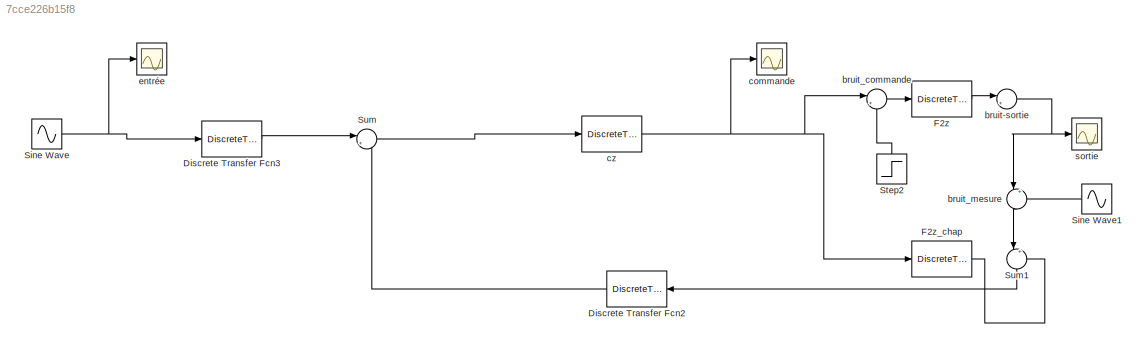
MODEL slx_7cce226b15f8
KIND model
CONFIG AbsTol = auto
CONFIG EnableMultiTasking = off
CONFIG FixedStep = auto
CONFIG MaxStep = auto
CONFIG MinStep = auto
CONFIG RelTol = 1e-3
CONFIG SampleTimeConstraint = Unconstrained
CONFIG SolverName = VariableStepAuto
CONFIG StartTime = 0.0
CONFIG StopTime = 0.1
BLOCK [DiscreteTransferFcn] Discrete Transfer Fcn2
  Denominator = Fz_I.Denominator{1}
  InputPortMap = u0
  NameLocation = top
  Numerator = Fz_I.Numerator{1}
  SampleTime = Te
BLOCK [DiscreteTransferFcn] Discrete Transfer Fcn3
  Denominator = Gz_I.Denominator{1}
  InputPortMap = u0
  Numerator = Gz_I.Numerator{1}
  SampleTime = Te
BLOCK [DiscreteTransferFcn] F2z
  Denominator = Az_I
  InputPortMap = u0
  Numerator = Bz_I
  SampleTime = Te
BLOCK [DiscreteTransferFcn] F2z_chap
  Denominator = Az_I
  InputPortMap = u0
  Numerator = Bz_I
  SampleTime = Te
BLOCK [Sin] Sine Wave
  Amplitude = 25
  Frequency = 314
  SampleTime = Te
BLOCK [Sin] Sine Wave1
  Frequency = 9500
  NameLocation = top
  SampleTime = Te
BLOCK [Step] Step2
  NameLocation = right
  SampleTime = Te
  Time = 0.05
BLOCK [Sum] Sum
  Inputs = |+-
BLOCK [Sum] Sum1
  Inputs = |+-
  NameLocation = left
BLOCK [Sum] bruit-sortie
  Inputs = |++
BLOCK [Sum] bruit_commande
  Inputs = |++
BLOCK [Sum] bruit_mesure
  Inputs = |++
  NameLocation = left
BLOCK [Scope] commande
  Floating = off
  NumInputPorts = 1
  ScopeSpecificationString = Simulink.scopes.TimeScopeBlockCfg('CurrentConfiguration', extmgr.ConfigurationSet(extmgr.Configuration('Core','General UI',true),extmgr.Configuration('Core','Source UI',true),extmgr.Configuration('Sources','WiredSimulink',true,'DataLoggingVariableName','ScopeData2'),extmgr.Configuration('Visuals','Time Domain',true,'SerializedDisplays',{struct('MinYLimReal','52.31673','MaxYLimReal','119.40206','YL...<+1443ch>
BLOCK [DiscreteTransferFcn] cz
  Denominator = Cz_I.Denominator{1}
  InputPortMap = u0
  Numerator = Cz_I.Numerator{1}
  SampleTime = Te
BLOCK [Scope] entrée
  Floating = off
  NumInputPorts = 1
  ScopeSpecificationString = Simulink.scopes.TimeScopeBlockCfg('CurrentConfiguration', extmgr.ConfigurationSet(extmgr.Configuration('Core','General UI',true),extmgr.Configuration('Core','Source UI',true),extmgr.Configuration('Sources','WiredSimulink',true,'DataLoggingVariableName','ScopeData1'),extmgr.Configuration('Visuals','Time Domain',true,'SerializedDisplays',{struct('MinYLimReal','-31.11678','MaxYLimReal','31.25','YLabe...<+1410ch>
BLOCK [Scope] sortie
  Floating = off
  NumInputPorts = 1
  ScopeSpecificationString = Simulink.scopes.TimeScopeBlockCfg('CurrentConfiguration', extmgr.ConfigurationSet(extmgr.Configuration('Core','General UI',true),extmgr.Configuration('Core','Source UI',true),extmgr.Configuration('Sources','WiredSimulink',true),extmgr.Configuration('Visuals','Time Domain',true,'SerializedDisplays',{struct('MinYLimReal','-12.69897','MaxYLimReal','10.52516','YLabelReal','','MinYLimMag','0.00000','Ma...<+1384ch>
LINE Discrete Transfer Fcn2:1 -> Sum:2
LINE Discrete Transfer Fcn3:1 -> Sum:1
LINE F2z:1 -> bruit-sortie:1
LINE F2z_chap:1 -> Sum1:2
LINE Sine Wave1:1 -> bruit_mesure:2
NET Sine Wave:1 -> Discrete Transfer Fcn3:1, entrée:1
LINE Step2:1 -> bruit_commande:2
LINE Sum1:1 -> Discrete Transfer Fcn2:1
LINE Sum:1 -> cz:1
NET bruit-sortie:1 -> bruit_mesure:1, sortie:1
LINE bruit_commande:1 -> F2z:1
LINE bruit_mesure:1 -> Sum1:1
NET cz:1 -> F2z_chap:1, bruit_commande:1, commande:1
note: NET lines group one-source signal fan-out (src -> all destinations, sorted); 1:1 wires keep LINE
